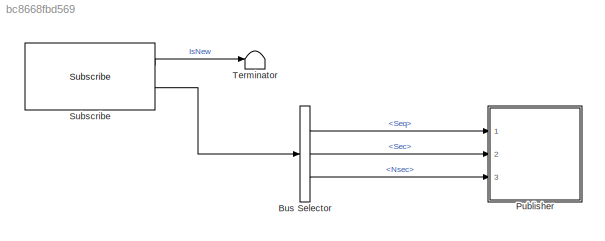
MODEL slx_bc8668fbd569
KIND model
CONFIG AbsTol = auto
CONFIG EnableMultiTasking = off
CONFIG FixedStep = 0.01
CONFIG MaxStep = auto
CONFIG MinStep = auto
CONFIG RelTol = 1e-3
CONFIG SampleTimeConstraint = Unconstrained
CONFIG Solver = FixedStepAuto
CONFIG SolverName = FixedStepAuto
CONFIG StartTime = 0.0
CONFIG StopTime = 10.0
BLOCK [BusSelector] Bus Selector
  OutputAsBus = off
  OutputSignals = Header.Seq,Header.Stamp.Sec,Header.Stamp.Nsec
  Ports = [1, 3]
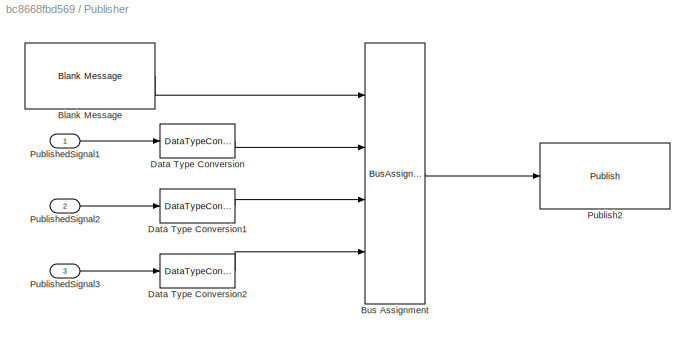
BLOCK [SubSystem] Publisher
  Ports = [3]
  RequestExecContextInheritance = off
  Variant = off
BLOCK [Reference] Publisher/Blank Message  REF=robotlib/Blank Message
  Ports = [0, 1]
  SourceBlock = robotlib/Blank Message
  SourceLibraryInfo = This block requires Robotics System Toolbox
  SourceProductBaseCode = RO
  SourceProductName = Robotics System Toolbox
  SourceType = ROS Blank Message
BLOCK [BusAssignment] Publisher/Bus Assignment
  AssignedSignals = Point.X,Point.Y,Point.Z
  Ports = [4, 1]
BLOCK [DataTypeConversion] Publisher/Data Type Conversion
  RndMeth = Floor
  SaturateOnIntegerOverflow = off
BLOCK [DataTypeConversion] Publisher/Data Type Conversion1
  RndMeth = Floor
  SaturateOnIntegerOverflow = off
BLOCK [DataTypeConversion] Publisher/Data Type Conversion2
  RndMeth = Floor
  SaturateOnIntegerOverflow = off
BLOCK [Reference] Publisher/Publish2  REF=robotlib/Publish
  AttributesFormatString = %<messageType>
  Ports = [1]
  SourceBlock = robotlib/Publish
  SourceLibraryInfo = This block requires Robotics System Toolbox
  SourceProductBaseCode = RO
  SourceProductName = Robotics System Toolbox
  SourceType = ROS Publish
BLOCK [Inport] Publisher/PublishedSignal1
  IconDisplay = Port number
BLOCK [Inport] Publisher/PublishedSignal2
  IconDisplay = Port number
  Port = 2
BLOCK [Inport] Publisher/PublishedSignal3
  IconDisplay = Port number
  Port = 3
BLOCK [Reference] Subscribe  REF=robotlib/Subscribe
  Ports = [0, 2]
  SourceBlock = robotlib/Subscribe
  SourceLibraryInfo = This block requires Robotics System Toolbox
  SourceProductBaseCode = RO
  SourceProductName = Robotics System Toolbox
  SourceType = ROS Subscribe
BLOCK [Terminator] Terminator
LINE Bus Selector:1 -> Publisher:1
LINE Bus Selector:2 -> Publisher:2
LINE Bus Selector:3 -> Publisher:3
LINE Publisher/Blank Message:1 -> Publisher/Bus Assignment:1
LINE Publisher/Bus Assignment:1 -> Publisher/Publish2:1
LINE Publisher/Data Type Conversion1:1 -> Publisher/Bus Assignment:3
LINE Publisher/Data Type Conversion2:1 -> Publisher/Bus Assignment:4
LINE Publisher/Data Type Conversion:1 -> Publisher/Bus Assignment:2
LINE Publisher/PublishedSignal1:1 -> Publisher/Data Type Conversion:1
LINE Publisher/PublishedSignal2:1 -> Publisher/Data Type Conversion1:1
LINE Publisher/PublishedSignal3:1 -> Publisher/Data Type Conversion2:1
LINE Subscribe:1 -> Terminator:1
LINE Subscribe:2 -> Bus Selector:1
